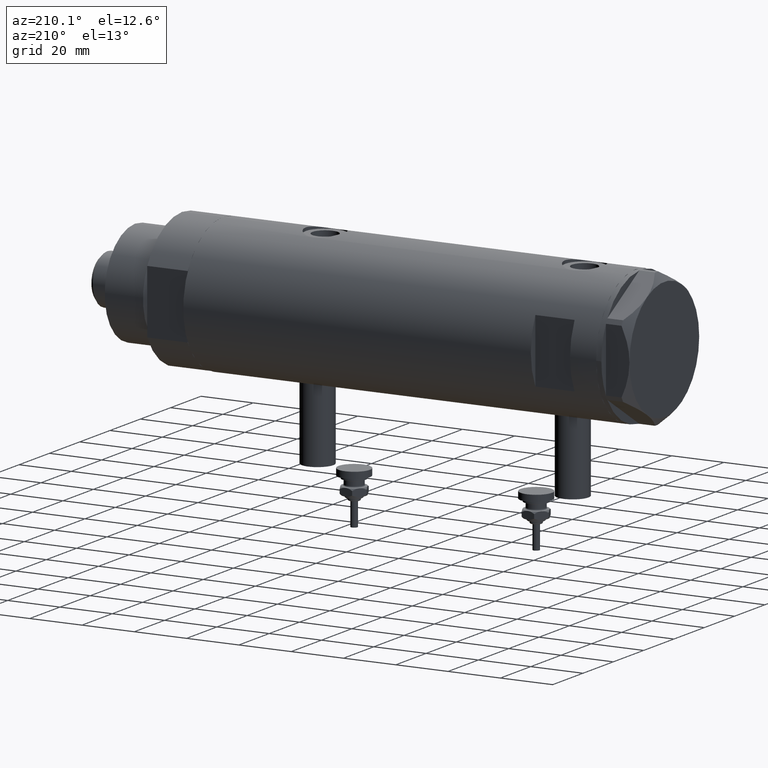
[diagram: clean part render]
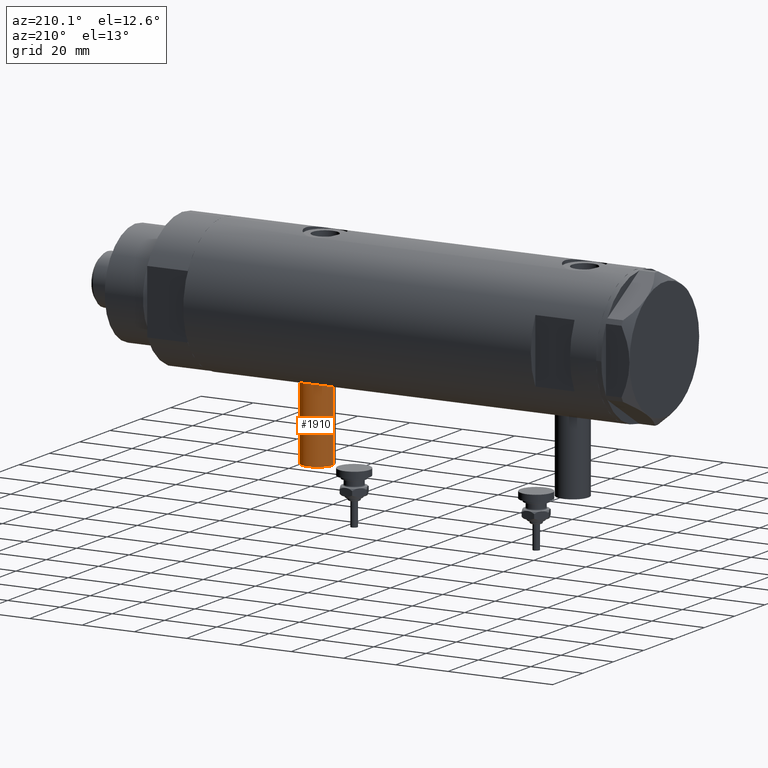
[diagram: same view with one face highlighted and labeled with its STEP entity id]
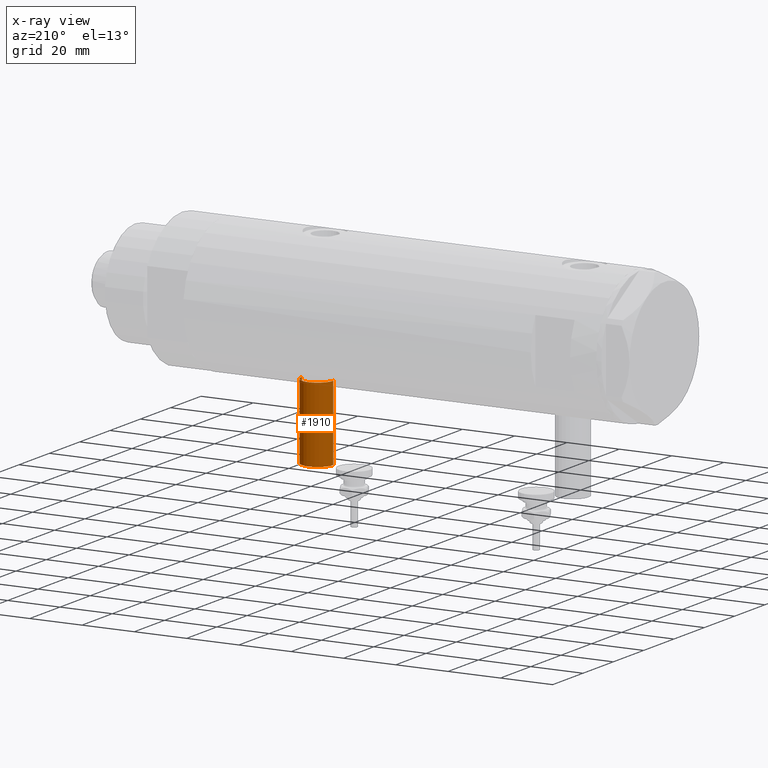
[diagram: x-ray of the same camera — body ghosted, the highlighted face saturated]
A machine part, auxiliary view. The second image highlights one B-rep face of the part: STEP entity #1910.
The next image is the same camera in x-ray: the body ghosted, the highlighted face saturated — about 0% of this face is hidden behind the body in this view.
In plain terms, the highlighted cylindrical surface (edge-blend (fillet) strip) has radius 6 mm, axis along (0, 0, 1).
Its self-contained STEP definition (entity closure, byte-faithful):
#45 = EDGE_CURVE ( 'NONE', #2055, #6063, #1369, .T. ) ;
#193 = DIRECTION ( 'NONE',  ( -1.000000000000000000, 0.000000000000000000, 0.000000000000000000 ) ) ;
#323 = VECTOR ( 'NONE', #5608, 1000.000000000000000 ) ;
#539 = ORIENTED_EDGE ( 'NONE', *, *, #2514, .F. ) ;
#540 = ORIENTED_EDGE ( 'NONE', *, *, #4600, .T. ) ;
#680 = FACE_OUTER_BOUND ( 'NONE', #738, .T. ) ;
#738 = EDGE_LOOP ( 'NONE', ( #539, #540, #4498, #1583 ) ) ;
#982 = DIRECTION ( 'NONE',  ( -1.000000000000000000, 0.000000000000000000, 0.000000000000000000 ) ) ;
#1091 = CARTESIAN_POINT ( 'NONE',  ( -24.80000000000000426, 0.000000000000000000, -42.65000000000000568 ) ) ;
#1196 = CARTESIAN_POINT ( 'NONE',  ( -53.40000000000000568, 0.000000000000000000, -42.65000000000000568 ) ) ;
#1369 = LINE ( 'NONE', #5750, #6213 ) ;
#1390 = CARTESIAN_POINT ( 'NONE',  ( -24.80000000000000426, 0.000000000000000000, -48.65000000000001279 ) ) ;
#1583 = ORIENTED_EDGE ( 'NONE', *, *, #45, .F. ) ;
#1751 = DIRECTION ( 'NONE',  ( 0.000000000000000000, 0.000000000000000000, -1.000000000000000000 ) ) ;
#1823 = DIRECTION ( 'NONE',  ( 1.000000000000000000, -0.000000000000000000, -0.000000000000000000 ) ) ;
#1910 = ADVANCED_FACE ( 'NONE', ( #680 ), #6080, .T. ) ;
#2055 = VERTEX_POINT ( 'NONE', #3267 ) ;
#2269 = CARTESIAN_POINT ( 'NONE',  ( -53.40000000000000568, 7.347880794884122694E-16, -36.64999999999999858 ) ) ;
#2514 = EDGE_CURVE ( 'NONE', #2872, #2055, #5419, .T. ) ;
#2588 = AXIS2_PLACEMENT_3D ( 'NONE', #1196, #3593, #1751 ) ;
#2872 = VERTEX_POINT ( 'NONE', #5752 ) ;
#3081 = DIRECTION ( 'NONE',  ( 0.000000000000000000, 0.000000000000000000, 1.000000000000000000 ) ) ;
#3111 = AXIS2_PLACEMENT_3D ( 'NONE', #1091, #193, #3081 ) ;
#3179 = LINE ( 'NONE', #2269, #323 ) ;
#3267 = CARTESIAN_POINT ( 'NONE',  ( -53.40000000000000568, 0.000000000000000000, -48.65000000000001279 ) ) ;
#3452 = CARTESIAN_POINT ( 'NONE',  ( -53.40000000000000568, 0.000000000000000000, -42.65000000000000568 ) ) ;
#3528 = VERTEX_POINT ( 'NONE', #5605 ) ;
#3593 = DIRECTION ( 'NONE',  ( 1.000000000000000000, -0.000000000000000000, -0.000000000000000000 ) ) ;
#3950 = EDGE_CURVE ( 'NONE', #3528, #6063, #5432, .T. ) ;
#4498 = ORIENTED_EDGE ( 'NONE', *, *, #3950, .T. ) ;
#4600 = EDGE_CURVE ( 'NONE', #2872, #3528, #3179, .T. ) ;
#5213 = AXIS2_PLACEMENT_3D ( 'NONE', #3452, #982, #5355 ) ;
#5355 = DIRECTION ( 'NONE',  ( 0.000000000000000000, 0.000000000000000000, 1.000000000000000000 ) ) ;
#5419 = CIRCLE ( 'NONE', #5213, 6.000000000000005329 ) ;
#5432 = CIRCLE ( 'NONE', #3111, 6.000000000000005329 ) ;
#5605 = CARTESIAN_POINT ( 'NONE',  ( -24.80000000000000426, 7.347880794884119736E-16, -36.64999999999999858 ) ) ;
#5608 = DIRECTION ( 'NONE',  ( 1.000000000000000000, -0.000000000000000000, -0.000000000000000000 ) ) ;
#5750 = CARTESIAN_POINT ( 'NONE',  ( -53.40000000000000568, 0.000000000000000000, -48.65000000000001279 ) ) ;
#5752 = CARTESIAN_POINT ( 'NONE',  ( -53.40000000000000568, 7.347880794884119736E-16, -36.64999999999999858 ) ) ;
#6063 = VERTEX_POINT ( 'NONE', #1390 ) ;
#6080 = CYLINDRICAL_SURFACE ( 'NONE', #2588, 6.000000000000005329 ) ;
#6213 = VECTOR ( 'NONE', #1823, 1000.000000000000000 ) ;